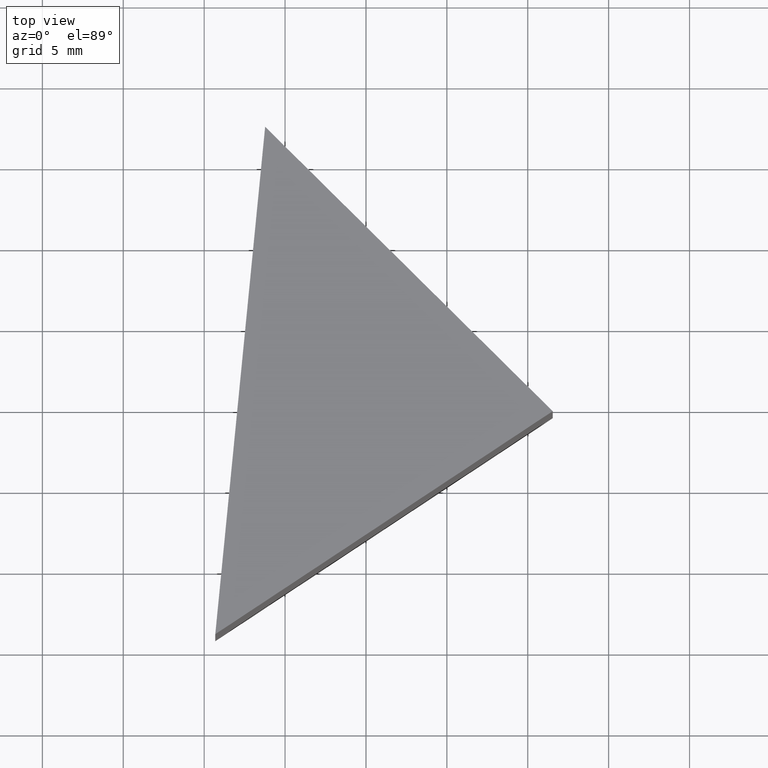
[diagram: clean part render]
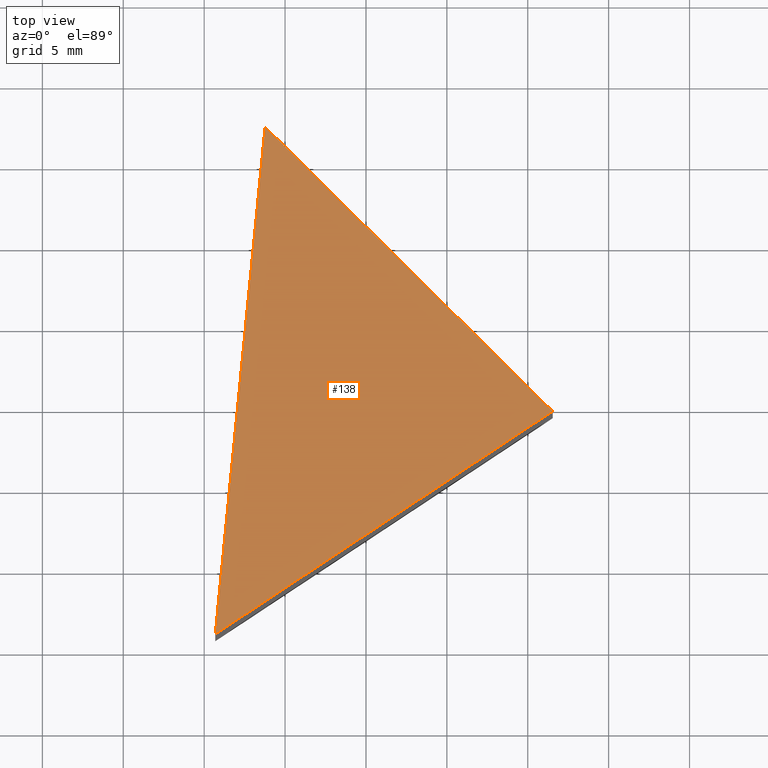
[diagram: same view with one face highlighted and labeled with its STEP entity id]
A machine part, top view. The second image highlights one B-rep face of the part: STEP entity #138.
In plain terms, the highlighted planar face has unit normal (0, 0, -1).
Its self-contained STEP definition (entity closure, byte-faithful):
#2 = ORIENTED_EDGE ( 'NONE', *, *, #49, .T. ) ;
#4 = AXIS2_PLACEMENT_3D ( 'NONE', #106, #128, #51 ) ;
#5 = VERTEX_POINT ( 'NONE', #54 ) ;
#9 = CARTESIAN_POINT ( 'NONE',  ( 21.54217066758669200, 14.63250925510907100, 25.00000000000000000 ) ) ;
#19 = EDGE_LOOP ( 'NONE', ( #150, #2, #88 ) ) ;
#24 = PLANE ( 'NONE',  #4 ) ;
#26 = EDGE_CURVE ( 'NONE', #32, #5, #28, .T. ) ;
#28 = LINE ( 'NONE', #156, #126 ) ;
#32 = VERTEX_POINT ( 'NONE', #98 ) ;
#38 = VERTEX_POINT ( 'NONE', #59 ) ;
#43 = DIRECTION ( 'NONE',  ( -0.09777970958415356500, -0.9952080829623715100, -0.0000000000000000000 ) ) ;
#49 = EDGE_CURVE ( 'NONE', #38, #32, #75, .T. ) ;
#51 = DIRECTION ( 'NONE',  ( -1.000000000000000000, 0.0000000000000000000, 0.0000000000000000000 ) ) ;
#54 = CARTESIAN_POINT ( 'NONE',  ( 0.6861709744360347000, 0.8474711050240408800, 25.00000000000000000 ) ) ;
#59 = CARTESIAN_POINT ( 'NONE',  ( 21.54217066758669200, 14.63250925510907100, 25.00000000000000000 ) ) ;
#65 = DIRECTION ( 'NONE',  ( -0.7109728236074630600, 0.7032194850056640000, 0.0000000000000000000 ) ) ;
#73 = EDGE_CURVE ( 'NONE', #5, #38, #112, .T. ) ;
#75 = LINE ( 'NONE', #113, #99 ) ;
#79 = DIRECTION ( 'NONE',  ( 0.8342399877260263700, 0.5514015260034012000, -0.0000000000000000000 ) ) ;
#88 = ORIENTED_EDGE ( 'NONE', *, *, #26, .T. ) ;
#98 = CARTESIAN_POINT ( 'NONE',  ( 3.767850077400120700, 32.21299638025067200, 25.00000000000000000 ) ) ;
#99 = VECTOR ( 'NONE', #65, 999.9999999999998900 ) ;
#101 = VECTOR ( 'NONE', #79, 1000.000000000000000 ) ;
#106 = CARTESIAN_POINT ( 'NONE',  ( 0.0000000000000000000, 0.0000000000000000000, 25.00000000000000000 ) ) ;
#112 = LINE ( 'NONE', #9, #101 ) ;
#113 = CARTESIAN_POINT ( 'NONE',  ( 21.54217066758669200, 14.63250925510907100, 25.00000000000000000 ) ) ;
#126 = VECTOR ( 'NONE', #43, 1000.000000000000100 ) ;
#128 = DIRECTION ( 'NONE',  ( 0.0000000000000000000, 0.0000000000000000000, -1.000000000000000000 ) ) ;
#133 = FACE_OUTER_BOUND ( 'NONE', #19, .T. ) ;
#138 = ADVANCED_FACE ( 'NONE', ( #133 ), #24, .F. ) ;
#150 = ORIENTED_EDGE ( 'NONE', *, *, #73, .T. ) ;
#156 = CARTESIAN_POINT ( 'NONE',  ( 0.6861709744360347000, 0.8474711050240408800, 25.00000000000000000 ) ) ;